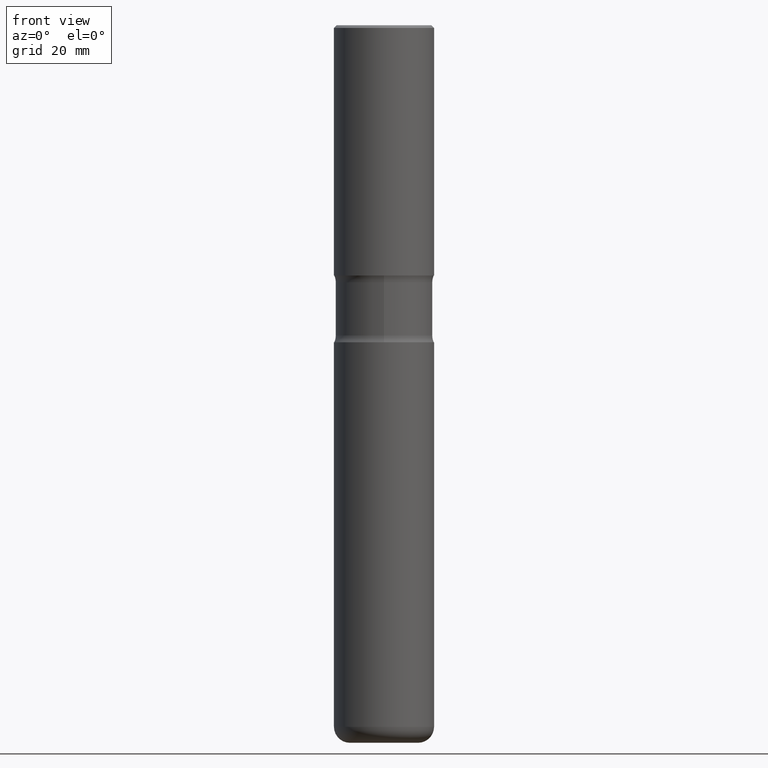
[diagram: clean part render]
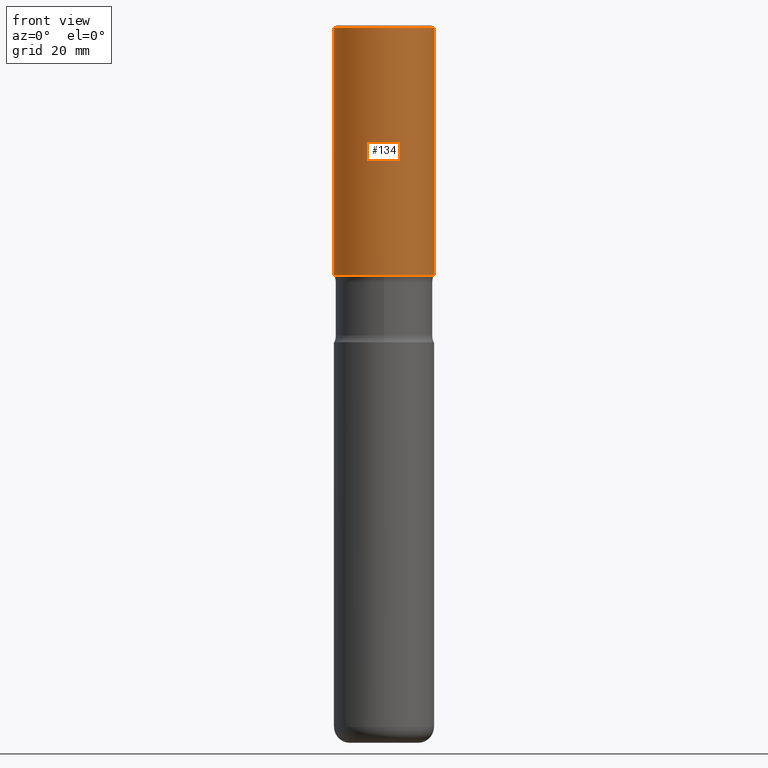
[diagram: same view with one face highlighted and labeled with its STEP entity id]
A machine part, front view. The second image highlights one B-rep face of the part: STEP entity #134.
In plain terms, the highlighted cylindrical surface (partial cylindrical patch) has radius 9.525 mm, axis along (-0, 0, 1).
Its self-contained STEP definition (entity closure, byte-faithful):
#9 = ORIENTED_EDGE ( 'NONE', *, *, #71, .F. ) ;
#13 = AXIS2_PLACEMENT_3D ( 'NONE', #505, #32, #217 ) ;
#14 = CIRCLE ( 'NONE', #385, 0.3750000000000002776 ) ;
#26 = CIRCLE ( 'NONE', #13, 0.3750000000000000555 ) ;
#32 = DIRECTION ( 'NONE',  ( -2.445468806185136597E-29, 3.491481338843145583E-15, 1.000000000000000000 ) ) ;
#33 = VERTEX_POINT ( 'NONE', #175 ) ;
#66 = VERTEX_POINT ( 'NONE', #410 ) ;
#71 = EDGE_CURVE ( 'NONE', #33, #66, #26, .T. ) ;
#98 = VERTEX_POINT ( 'NONE', #416 ) ;
#106 = DIRECTION ( 'NONE',  ( -2.445468806185136597E-29, 3.491481338843145583E-15, 1.000000000000000000 ) ) ;
#109 = ORIENTED_EDGE ( 'NONE', *, *, #554, .F. ) ;
#123 = CARTESIAN_POINT ( 'NONE',  ( 0.000000000000000000, 0.000000000000000000, 0.000000000000000000 ) ) ;
#124 = LINE ( 'NONE', #461, #475 ) ;
#134 = ADVANCED_FACE ( 'NONE', ( #330 ), #503, .T. ) ;
#175 = CARTESIAN_POINT ( 'NONE',  ( -0.3750000000000000555, 2.548781377355486718E-15, -0.02000000000000006981 ) ) ;
#211 = DIRECTION ( 'NONE',  ( -2.445468806185136877E-29, 3.491481338843145188E-15, 1.000000000000000000 ) ) ;
#217 = DIRECTION ( 'NONE',  ( 1.000000000000000000, -6.982962677686265922E-15, 0.000000000000000000 ) ) ;
#227 = AXIS2_PLACEMENT_3D ( 'NONE', #123, #288, #228 ) ;
#228 = DIRECTION ( 'NONE',  ( 1.000000000000000000, -6.982962677686266711E-15, 4.876176775795935793E-29 ) ) ;
#237 = CARTESIAN_POINT ( 'NONE',  ( 0.3750000000000002776, -9.165138514463251879E-15, -1.875000000000000444 ) ) ;
#288 = DIRECTION ( 'NONE',  ( -2.445468806185136597E-29, 3.491481338843145583E-15, 1.000000000000000000 ) ) ;
#293 = CARTESIAN_POINT ( 'NONE',  ( 4.585254011597131679E-29, -6.546527510330899496E-15, -1.875000000000000444 ) ) ;
#307 = EDGE_CURVE ( 'NONE', #98, #408, #14, .T. ) ;
#313 = DIRECTION ( 'NONE',  ( 1.000000000000000000, -6.982962677686265922E-15, 0.000000000000000000 ) ) ;
#320 = ORIENTED_EDGE ( 'NONE', *, *, #307, .T. ) ;
#329 = LINE ( 'NONE', #499, #406 ) ;
#330 = FACE_OUTER_BOUND ( 'NONE', #502, .T. ) ;
#355 = ORIENTED_EDGE ( 'NONE', *, *, #478, .T. ) ;
#385 = AXIS2_PLACEMENT_3D ( 'NONE', #293, #106, #313 ) ;
#406 = VECTOR ( 'NONE', #459, 39.37007874015748143 ) ;
#408 = VERTEX_POINT ( 'NONE', #237 ) ;
#410 = CARTESIAN_POINT ( 'NONE',  ( 0.3750000000000000555, -2.642516375941188029E-15, -0.02000000000000006981 ) ) ;
#416 = CARTESIAN_POINT ( 'NONE',  ( -0.3750000000000002776, -6.436433094535016571E-16, -1.875000000000000444 ) ) ;
#459 = DIRECTION ( 'NONE',  ( -2.445468806185136877E-29, 3.491481338843145188E-15, 1.000000000000000000 ) ) ;
#461 = CARTESIAN_POINT ( 'NONE',  ( 0.3750000000000001665, -2.618611004132351200E-15, 1.828566290923476763E-29 ) ) ;
#475 = VECTOR ( 'NONE', #211, 39.37007874015748143 ) ;
#478 = EDGE_CURVE ( 'NONE', #408, #66, #124, .T. ) ;
#499 = CARTESIAN_POINT ( 'NONE',  ( -0.3750000000000001665, 2.664535259100376880E-15, -1.844600658845590439E-29 ) ) ;
#502 = EDGE_LOOP ( 'NONE', ( #109, #320, #355, #9 ) ) ;
#503 = CYLINDRICAL_SURFACE ( 'NONE', #227, 0.3750000000000001665 ) ;
#505 = CARTESIAN_POINT ( 'NONE',  ( 4.890937612370289799E-31, -6.982962677686315028E-17, -0.02000000000000006981 ) ) ;
#554 = EDGE_CURVE ( 'NONE', #98, #33, #329, .T. ) ;